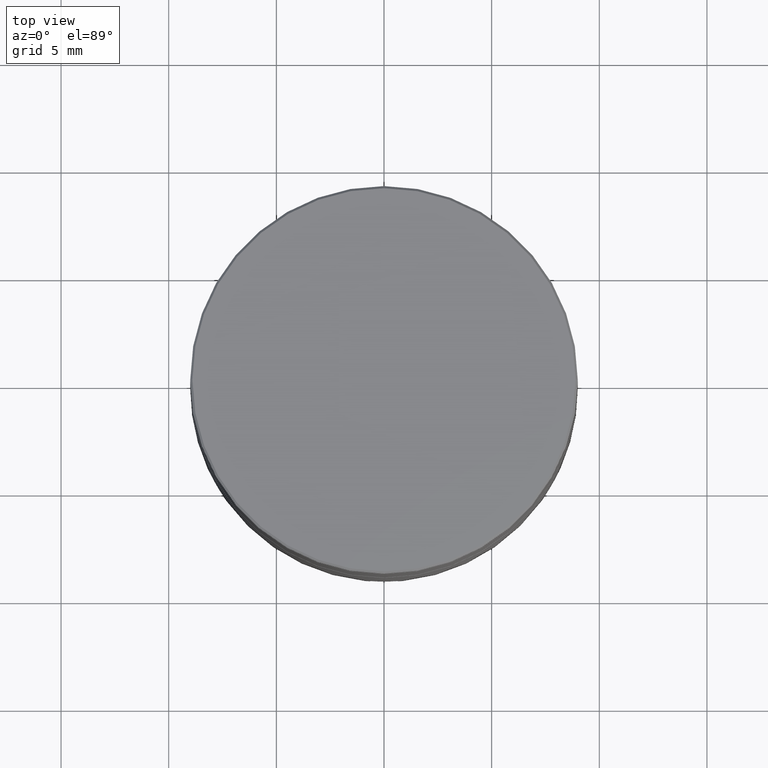
[diagram: clean part render]
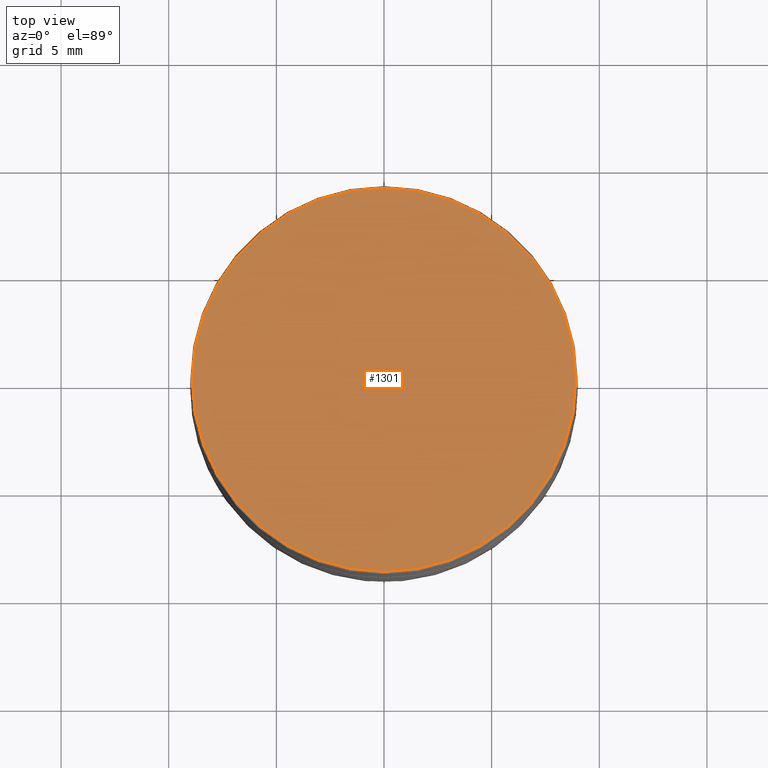
[diagram: same view with one face highlighted and labeled with its STEP entity id]
A machine part, top view. The second image highlights one B-rep face of the part: STEP entity #1301.
In plain terms, the highlighted planar face has unit normal (0, -0, 1).
Its self-contained STEP definition (entity closure, byte-faithful):
#14 = DIRECTION ( 'NONE',  ( 1.000000000000000000, 0.000000000000000000, 0.000000000000000000 ) ) ;
#89 = DIRECTION ( 'NONE',  ( 1.000000000000000000, 0.000000000000000000, 0.000000000000000000 ) ) ;
#155 = FACE_OUTER_BOUND ( 'NONE', #626, .T. ) ;
#189 = DIRECTION ( 'NONE',  ( 1.000000000000000000, 0.000000000000000000, 0.000000000000000000 ) ) ;
#220 = VERTEX_POINT ( 'NONE', #834 ) ;
#236 = ORIENTED_EDGE ( 'NONE', *, *, #751, .T. ) ;
#550 = PLANE ( 'NONE',  #810 ) ;
#626 = EDGE_LOOP ( 'NONE', ( #693, #236 ) ) ;
#693 = ORIENTED_EDGE ( 'NONE', *, *, #1394, .T. ) ;
#723 = DIRECTION ( 'NONE',  ( -0.000000000000000000, -0.000000000000000000, 1.000000000000000000 ) ) ;
#751 = EDGE_CURVE ( 'NONE', #220, #962, #981, .T. ) ;
#810 = AXIS2_PLACEMENT_3D ( 'NONE', #1051, #1446, #189 ) ;
#819 = AXIS2_PLACEMENT_3D ( 'NONE', #1250, #1381, #14 ) ;
#832 = CARTESIAN_POINT ( 'NONE',  ( 0.000000000000000000, 0.000000000000000000, 0.000000000000000000 ) ) ;
#834 = CARTESIAN_POINT ( 'NONE',  ( 8.900000000000009237, 1.096058885236881233E-15, 0.000000000000000000 ) ) ;
#962 = VERTEX_POINT ( 'NONE', #1314 ) ;
#981 = CIRCLE ( 'NONE', #819, 8.900000000000009237 ) ;
#1051 = CARTESIAN_POINT ( 'NONE',  ( 0.000000000000000000, 0.000000000000000000, 0.000000000000000000 ) ) ;
#1250 = CARTESIAN_POINT ( 'NONE',  ( 0.000000000000000000, 0.000000000000000000, 0.000000000000000000 ) ) ;
#1301 = ADVANCED_FACE ( 'NONE', ( #155 ), #550, .T. ) ;
#1314 = CARTESIAN_POINT ( 'NONE',  ( -8.900000000000009237, 0.000000000000000000, 0.000000000000000000 ) ) ;
#1368 = AXIS2_PLACEMENT_3D ( 'NONE', #832, #723, #89 ) ;
#1381 = DIRECTION ( 'NONE',  ( -0.000000000000000000, -0.000000000000000000, 1.000000000000000000 ) ) ;
#1391 = CIRCLE ( 'NONE', #1368, 8.900000000000009237 ) ;
#1394 = EDGE_CURVE ( 'NONE', #962, #220, #1391, .T. ) ;
#1446 = DIRECTION ( 'NONE',  ( 0.000000000000000000, -0.000000000000000000, 1.000000000000000000 ) ) ;